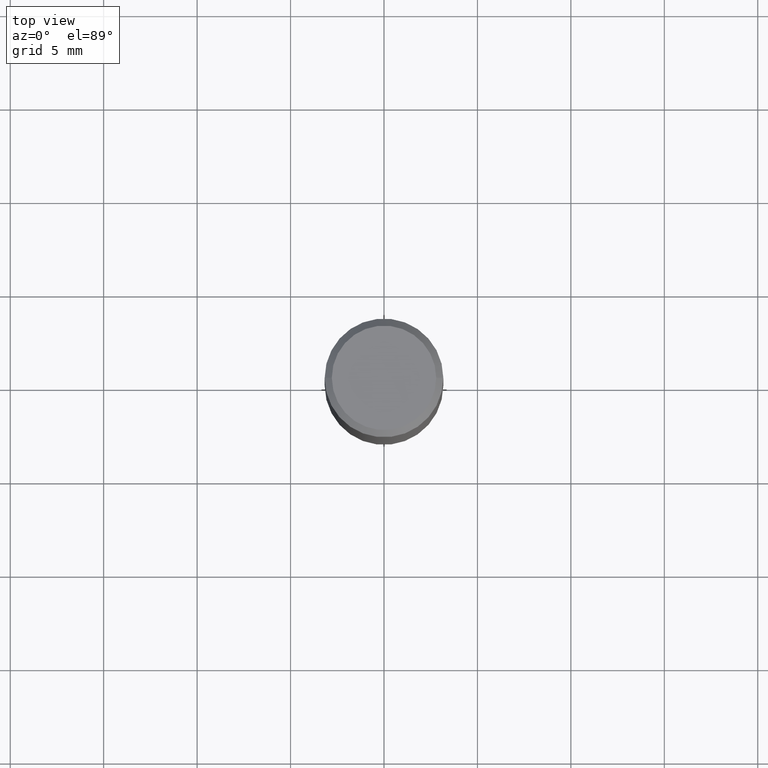
[diagram: clean part render]
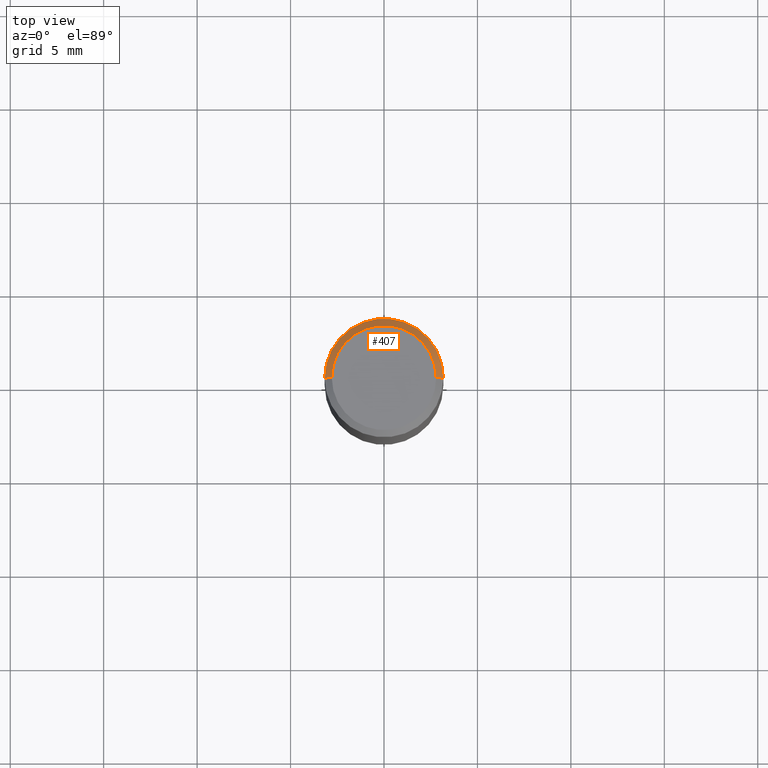
[diagram: same view with one face highlighted and labeled with its STEP entity id]
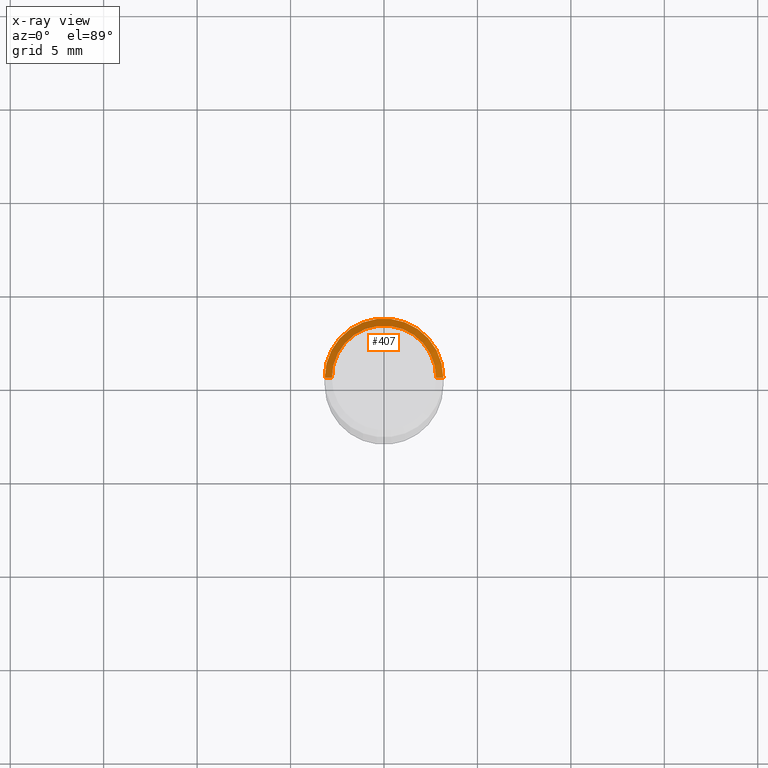
[diagram: x-ray of the same camera — body ghosted, the highlighted face saturated]
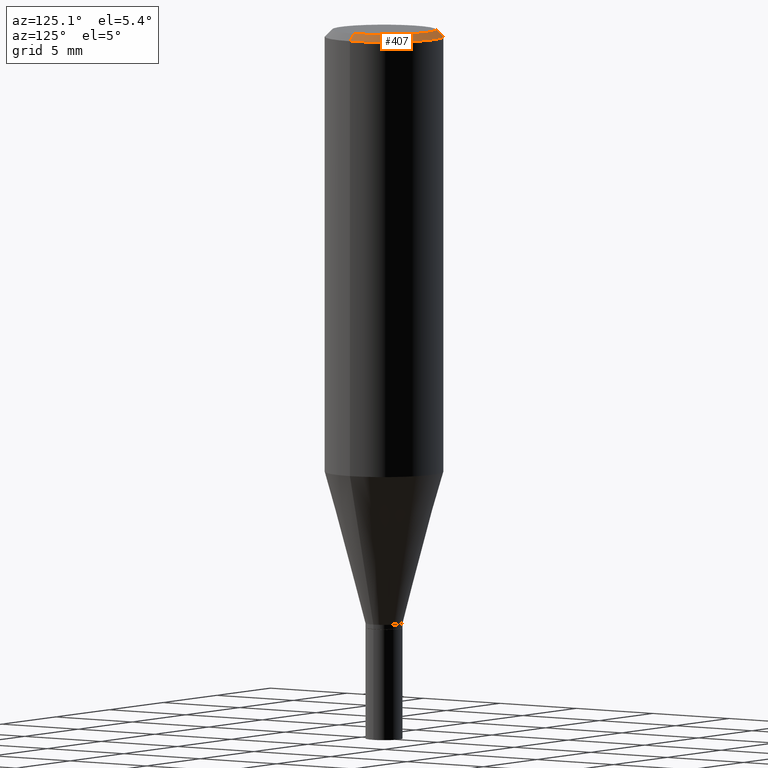
[diagram: same view with one face highlighted and labeled with its STEP entity id]
A machine part, top view. The second image highlights one B-rep face of the part: STEP entity #407.
The next image is the same camera in x-ray: the body ghosted, the highlighted face saturated — about 0% of this face is hidden behind the body in this view.
A second angle (auxiliary view) of the same face is appended — the face is thin or edge-on in the first view.
In plain terms, the highlighted conical surface has half-angle 45 deg.
Its self-contained STEP definition (entity closure, byte-faithful):
#1 = DIRECTION ( 'NONE',  ( 1.000000000000000000, -6.982962677686266711E-15, 0.000000000000000000 ) ) ;
#46 = DIRECTION ( 'NONE',  ( 0.7071067811865365815, -7.319954787623219758E-15, -0.7071067811865584529 ) ) ;
#48 = LINE ( 'NONE', #298, #401 ) ;
#56 = VERTEX_POINT ( 'NONE', #379 ) ;
#70 = DIRECTION ( 'NONE',  ( -0.7071067811865365815, 2.468850131082142676E-15, -0.7071067811865584529 ) ) ;
#76 = DIRECTION ( 'NONE',  ( -1.000000000000000000, 6.982962677686266711E-15, 0.000000000000000000 ) ) ;
#100 = LINE ( 'NONE', #387, #403 ) ;
#112 = CARTESIAN_POINT ( 'NONE',  ( 3.668203209277705088E-31, -5.237222008264718399E-17, -0.01499999999999999944 ) ) ;
#116 = CONICAL_SURFACE ( 'NONE', #452, 0.1250000000000000000, 0.7853981633974328469 ) ;
#119 = EDGE_LOOP ( 'NONE', ( #442, #230, #172, #464 ) ) ;
#128 = VERTEX_POINT ( 'NONE', #163 ) ;
#136 = CARTESIAN_POINT ( 'NONE',  ( 0.1100000000000000006, -8.322946247794777961E-16, 4.589658644116375565E-16 ) ) ;
#142 = VERTEX_POINT ( 'NONE', #136 ) ;
#155 = VERTEX_POINT ( 'NONE', #283 ) ;
#163 = CARTESIAN_POINT ( 'NONE',  ( -0.1100000000000000006, 7.943120045868136075E-16, 4.589658644116265124E-16 ) ) ;
#169 = AXIS2_PLACEMENT_3D ( 'NONE', #318, #220, #323 ) ;
#172 = ORIENTED_EDGE ( 'NONE', *, *, #286, .T. ) ;
#179 = CIRCLE ( 'NONE', #169, 0.1100000000000000006 ) ;
#220 = DIRECTION ( 'NONE',  ( -2.445468806185136597E-29, 3.491481338843145583E-15, 1.000000000000000000 ) ) ;
#230 = ORIENTED_EDGE ( 'NONE', *, *, #383, .T. ) ;
#241 = CIRCLE ( 'NONE', #260, 0.1250000000000000000 ) ;
#260 = AXIS2_PLACEMENT_3D ( 'NONE', #360, #390, #1 ) ;
#276 = EDGE_CURVE ( 'NONE', #142, #128, #179, .T. ) ;
#283 = CARTESIAN_POINT ( 'NONE',  ( -0.1250000000000000000, -7.706771435180783978E-16, -0.01499999999999999944 ) ) ;
#286 = EDGE_CURVE ( 'NONE', #56, #155, #241, .T. ) ;
#298 = CARTESIAN_POINT ( 'NONE',  ( 0.1250000000000000000, -9.099344698040885245E-16, -0.01499999999999999944 ) ) ;
#304 = EDGE_CURVE ( 'NONE', #128, #155, #100, .T. ) ;
#318 = CARTESIAN_POINT ( 'NONE',  ( -1.122386704522442906E-44, 1.602470750759226619E-30, 4.589658644116320345E-16 ) ) ;
#323 = DIRECTION ( 'NONE',  ( 1.000000000000000000, -6.982962677686266711E-15, 4.852736867747365646E-29 ) ) ;
#360 = CARTESIAN_POINT ( 'NONE',  ( 3.668203209277705088E-31, -5.237222008264718399E-17, -0.01499999999999999944 ) ) ;
#379 = CARTESIAN_POINT ( 'NONE',  ( 0.1250000000000000000, -9.252425547934304180E-16, -0.01499999999999999944 ) ) ;
#383 = EDGE_CURVE ( 'NONE', #142, #56, #48, .T. ) ;
#387 = CARTESIAN_POINT ( 'NONE',  ( -0.1250000000000000000, 8.204981146281362596E-16, -0.01499999999999999944 ) ) ;
#390 = DIRECTION ( 'NONE',  ( -2.445468806185136597E-29, 3.491481338843145583E-15, 1.000000000000000000 ) ) ;
#399 = DIRECTION ( 'NONE',  ( 2.445468806185136597E-29, -3.491481338843145583E-15, -1.000000000000000000 ) ) ;
#401 = VECTOR ( 'NONE', #46, 39.37007874015748143 ) ;
#403 = VECTOR ( 'NONE', #70, 39.37007874015748143 ) ;
#407 = ADVANCED_FACE ( 'NONE', ( #435 ), #116, .T. ) ;
#435 = FACE_OUTER_BOUND ( 'NONE', #119, .T. ) ;
#442 = ORIENTED_EDGE ( 'NONE', *, *, #276, .F. ) ;
#452 = AXIS2_PLACEMENT_3D ( 'NONE', #112, #399, #76 ) ;
#464 = ORIENTED_EDGE ( 'NONE', *, *, #304, .F. ) ;